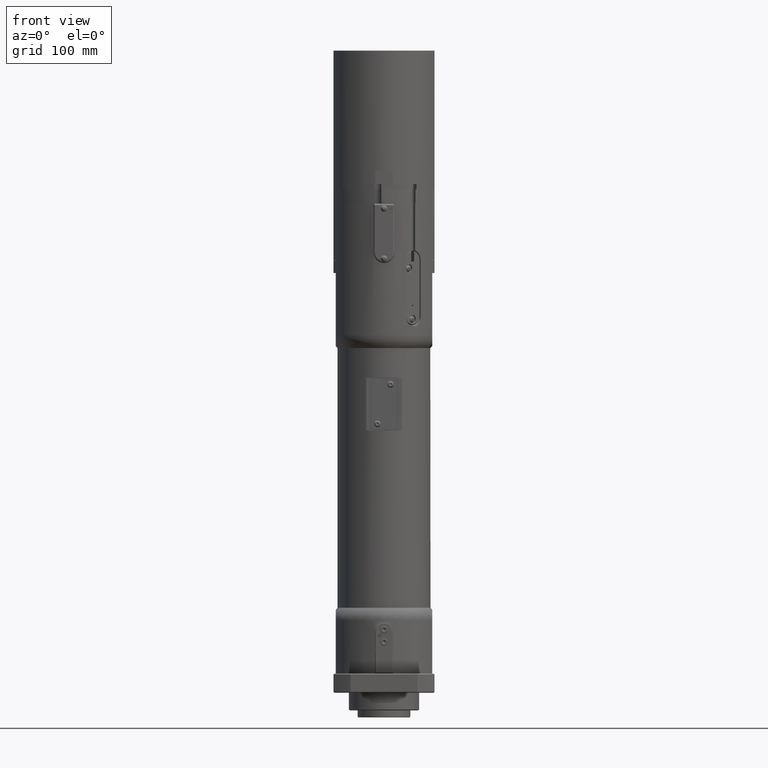
[diagram: clean part render]
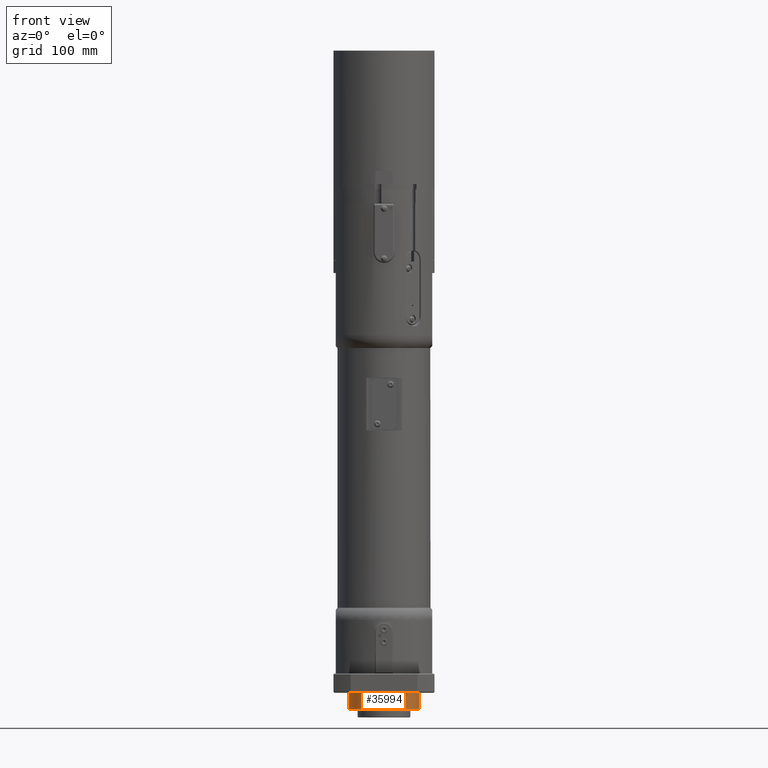
[diagram: same view with one face highlighted and labeled with its STEP entity id]
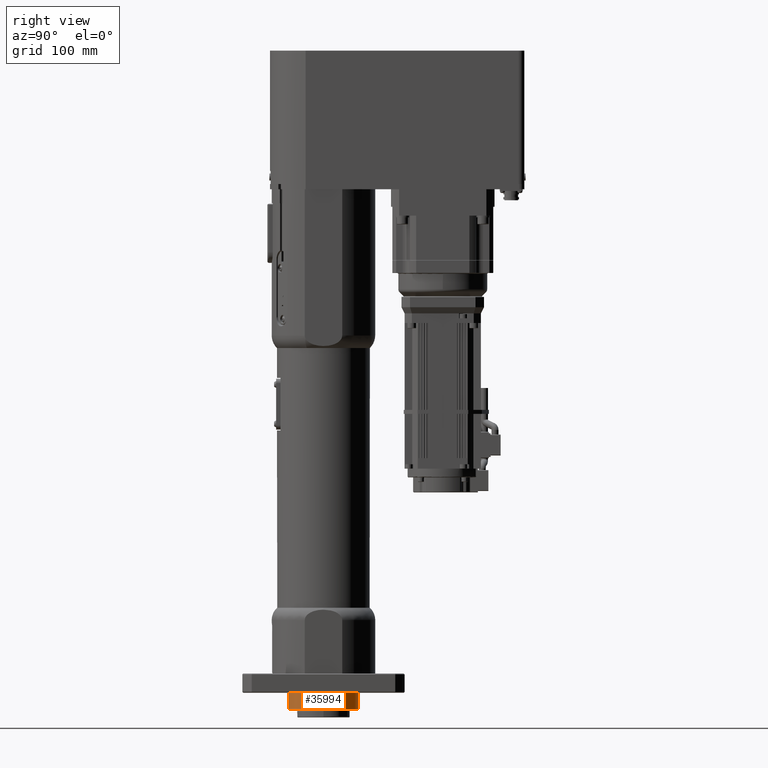
[diagram: same view with one face highlighted and labeled with its STEP entity id]
A machine part, front view. The second image highlights one B-rep face of the part: STEP entity #35994.
A second angle (right view) of the same face is appended — the face is thin or edge-on in the first view.
In plain terms, the highlighted cylindrical surface (bore or boss wall) has radius 40 mm, axis along (-0, -0, -1).
Its self-contained STEP definition (entity closure, byte-faithful):
#2664=FACE_OUTER_BOUND('',#4640,.T.);
#4640=EDGE_LOOP('',(#25274,#25275,#25276,#25277));
#6828=CIRCLE('',#38552,40.);
#6841=CIRCLE('',#38590,40.);
#8863=LINE('',#56321,#11630);
#11630=VECTOR('',#44296,40.);
#14763=VERTEX_POINT('',#56172);
#14788=VERTEX_POINT('',#56319);
#18709=EDGE_CURVE('',#14763,#14763,#6828,.T.);
#18758=EDGE_CURVE('',#14788,#14788,#6841,.T.);
#18759=EDGE_CURVE('',#14788,#14763,#8863,.T.);
#25274=ORIENTED_EDGE('',*,*,#18758,.F.);
#25275=ORIENTED_EDGE('',*,*,#18759,.T.);
#25276=ORIENTED_EDGE('',*,*,#18709,.F.);
#25277=ORIENTED_EDGE('',*,*,#18759,.F.);
#33264=CYLINDRICAL_SURFACE('',#38589,40.);
#35994=ADVANCED_FACE('',(#2664),#33264,.T.);
#38552=AXIS2_PLACEMENT_3D('',#56173,#44198,#44199);
#38589=AXIS2_PLACEMENT_3D('',#56318,#44292,#44293);
#38590=AXIS2_PLACEMENT_3D('',#56320,#44294,#44295);
#44198=DIRECTION('center_axis',(2.46941931925367E-16,7.03154948225545E-29,
1.));
#44199=DIRECTION('ref_axis',(-1.,3.43055726448117E-12,2.46941931925367E-16));
#44292=DIRECTION('center_axis',(-2.46941931925367E-16,-7.03154948225545E-29,
-1.));
#44293=DIRECTION('ref_axis',(-1.,3.43055726448117E-12,2.46941931925367E-16));
#44294=DIRECTION('center_axis',(-2.46941931925367E-16,-7.03154948225545E-29,
-1.));
#44295=DIRECTION('ref_axis',(-1.,3.43055726448117E-12,2.46941931925367E-16));
#44296=DIRECTION('',(2.46941931925367E-16,7.03154948225545E-29,1.));
#56172=CARTESIAN_POINT('',(39.999999999999,-7.96017993942274E-12,1.95399252334028E-13));
#56173=CARTESIAN_POINT('Origin',(-9.76415075373363E-13,1.29257212052627E-10,
2.04281036531029E-13));
#56318=CARTESIAN_POINT('Origin',(-9.70982352871005E-13,1.29257212052627E-10,
22.0000000000002));
#56319=CARTESIAN_POINT('',(39.999999999999,-7.9699771138159E-12,-18.9999999999998));
#56320=CARTESIAN_POINT('Origin',(-9.81106972079945E-13,1.29257212052627E-10,
-18.9999999999998));
#56321=CARTESIAN_POINT('',(39.999999999999,-7.9699771138159E-12,22.0000000000002));